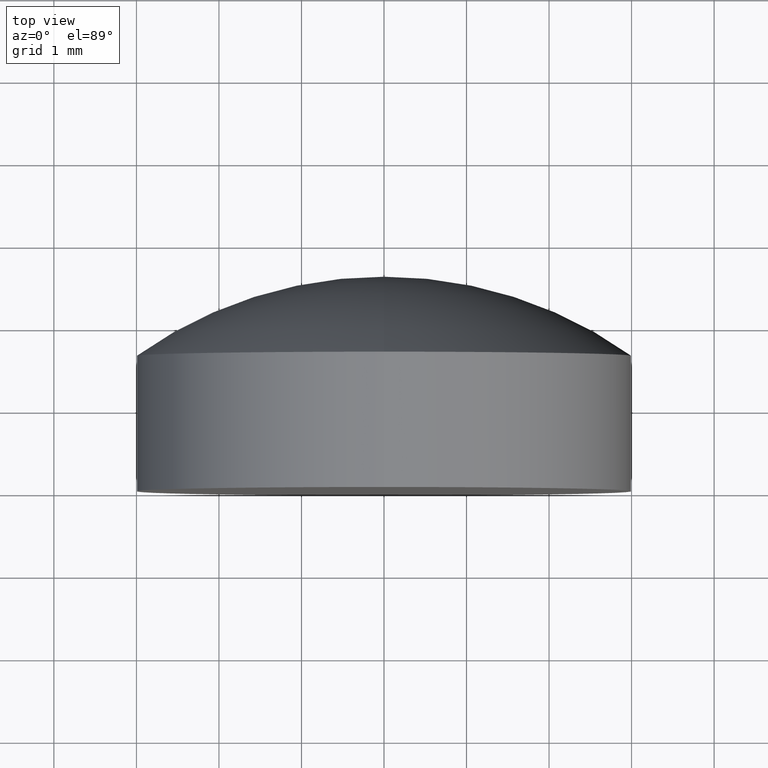
[diagram: clean part render]
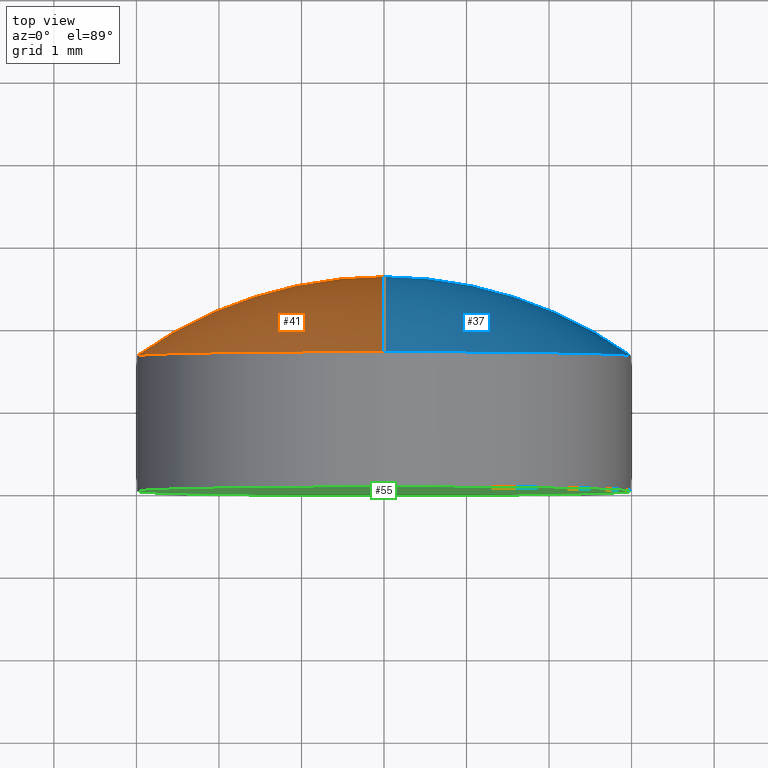
[diagram: same view with three faces highlighted in distinct colors, each labeled with its STEP entity id]
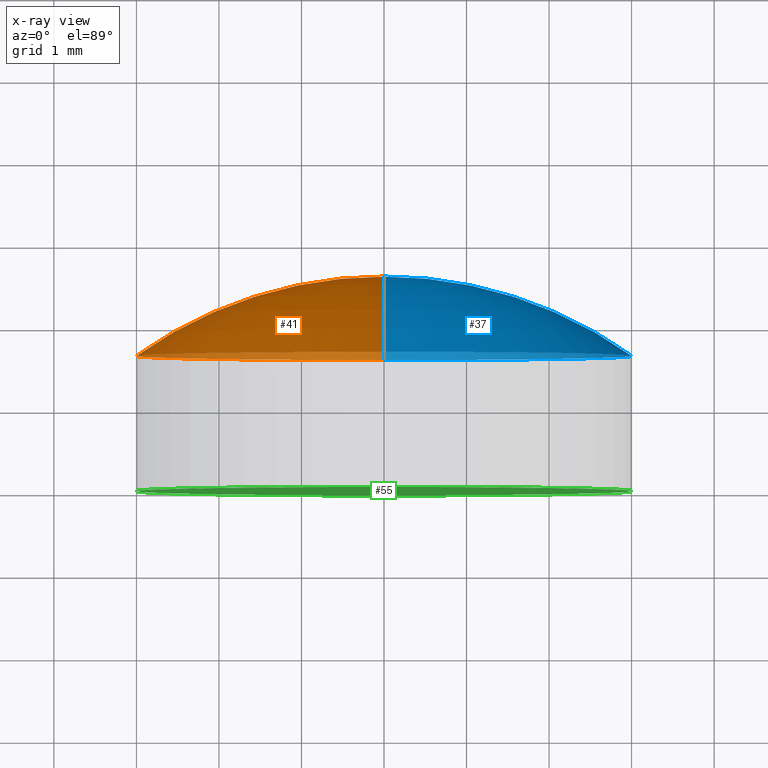
[diagram: x-ray of the same camera — body ghosted, the three highlighted faces saturated]
A machine part, top view with three faces highlighted in distinct colors.
The next image is the same camera in x-ray (body ghosted, the three faces saturated) — at least one of them is partly hidden behind the body in this view.
Their STEP definitions:

[orange] entity #41 — the highlighted toroidal blend (fillet) surface has major radius 0.0008 mm and minor (blend) radius 5.17 mm.
#7 = AXIS2_PLACEMENT_3D ( 'NONE', #60, #64, #29 ) ;
#9 = DIRECTION ( 'NONE',  ( -0.000000000000000000, 1.000000000000000000, -0.000000000000000000 ) ) ;
#28 = CARTESIAN_POINT ( 'NONE',  ( 0.000000000000000000, 1.639999999999999236, 3.000000000000000444 ) ) ;
#29 = DIRECTION ( 'NONE',  ( 1.224646799147353207E-16, 0.000000000000000000, -1.000000000000000000 ) ) ;
#36 = CIRCLE ( 'NONE', #88, 5.169999999999999929 ) ;
#39 = VERTEX_POINT ( 'NONE', #28 ) ;
#41 = ADVANCED_FACE ( 'NONE', ( #45 ), #75, .T. ) ;
#45 = FACE_OUTER_BOUND ( 'NONE', #128, .T. ) ;
#46 = DIRECTION ( 'NONE',  ( 0.000000000000000000, 0.000000000000000000, 1.000000000000000000 ) ) ;
#49 = CARTESIAN_POINT ( 'NONE',  ( 3.673940397442060361E-16, 1.639999999999999236, -3.000000000000000444 ) ) ;
#56 = ORIENTED_EDGE ( 'NONE', *, *, #140, .T. ) ;
#58 = CARTESIAN_POINT ( 'NONE',  ( 0.000000000000000000, -2.569999938107513593, 0.000000000000000000 ) ) ;
#60 = CARTESIAN_POINT ( 'NONE',  ( -9.796931844589988710E-20, -2.569999938107513593, 0.0007999801944047046226 ) ) ;
#64 = DIRECTION ( 'NONE',  ( 1.000000000000000000, 0.000000000000000000, 1.224646799147353207E-16 ) ) ;
#67 = CIRCLE ( 'NONE', #137, 3.000000000000000000 ) ;
#75 = TOROIDAL_SURFACE ( 'NONE', #176, -0.0007999801944047046226, 5.169999999999999929 ) ;
#88 = AXIS2_PLACEMENT_3D ( 'NONE', #149, #195, #189 ) ;
#101 = ORIENTED_EDGE ( 'NONE', *, *, #112, .F. ) ;
#112 = EDGE_CURVE ( 'NONE', #162, #114, #180, .T. ) ;
#114 = VERTEX_POINT ( 'NONE', #132 ) ;
#128 = EDGE_LOOP ( 'NONE', ( #101, #192, #56 ) ) ;
#132 = CARTESIAN_POINT ( 'NONE',  ( 0.000000000000000000, 2.600000000000000089, 0.000000000000000000 ) ) ;
#137 = AXIS2_PLACEMENT_3D ( 'NONE', #186, #173, #171 ) ;
#140 = EDGE_CURVE ( 'NONE', #39, #114, #36, .T. ) ;
#149 = CARTESIAN_POINT ( 'NONE',  ( 0.000000000000000000, -2.569999938107513593, -0.0007999801944047046226 ) ) ;
#162 = VERTEX_POINT ( 'NONE', #49 ) ;
#163 = EDGE_CURVE ( 'NONE', #162, #39, #67, .T. ) ;
#171 = DIRECTION ( 'NONE',  ( 0.000000000000000000, 0.000000000000000000, 1.000000000000000000 ) ) ;
#173 = DIRECTION ( 'NONE',  ( -0.000000000000000000, 1.000000000000000000, -0.000000000000000000 ) ) ;
#176 = AXIS2_PLACEMENT_3D ( 'NONE', #58, #9, #46 ) ;
#180 = CIRCLE ( 'NONE', #7, 5.169999999999999929 ) ;
#186 = CARTESIAN_POINT ( 'NONE',  ( 0.000000000000000000, 1.639999999999999458, 0.000000000000000000 ) ) ;
#189 = DIRECTION ( 'NONE',  ( 0.000000000000000000, 0.000000000000000000, 1.000000000000000000 ) ) ;
#192 = ORIENTED_EDGE ( 'NONE', *, *, #163, .T. ) ;
#195 = DIRECTION ( 'NONE',  ( -1.000000000000000000, 0.000000000000000000, 0.000000000000000000 ) ) ;

[blue] entity #37 — the highlighted toroidal blend (fillet) surface has major radius 0.0008 mm and minor (blend) radius 5.17 mm.
#7 = AXIS2_PLACEMENT_3D ( 'NONE', #60, #64, #29 ) ;
#8 = ORIENTED_EDGE ( 'NONE', *, *, #72, .T. ) ;
#23 = ORIENTED_EDGE ( 'NONE', *, *, #112, .T. ) ;
#25 = DIRECTION ( 'NONE',  ( 0.000000000000000000, 0.000000000000000000, 1.000000000000000000 ) ) ;
#28 = CARTESIAN_POINT ( 'NONE',  ( 0.000000000000000000, 1.639999999999999236, 3.000000000000000444 ) ) ;
#29 = DIRECTION ( 'NONE',  ( 1.224646799147353207E-16, 0.000000000000000000, -1.000000000000000000 ) ) ;
#36 = CIRCLE ( 'NONE', #88, 5.169999999999999929 ) ;
#37 = ADVANCED_FACE ( 'NONE', ( #166 ), #103, .T. ) ;
#39 = VERTEX_POINT ( 'NONE', #28 ) ;
#49 = CARTESIAN_POINT ( 'NONE',  ( 3.673940397442060361E-16, 1.639999999999999236, -3.000000000000000444 ) ) ;
#52 = AXIS2_PLACEMENT_3D ( 'NONE', #136, #165, #185 ) ;
#54 = AXIS2_PLACEMENT_3D ( 'NONE', #133, #61, #25 ) ;
#60 = CARTESIAN_POINT ( 'NONE',  ( -9.796931844589988710E-20, -2.569999938107513593, 0.0007999801944047046226 ) ) ;
#61 = DIRECTION ( 'NONE',  ( -0.000000000000000000, 1.000000000000000000, -0.000000000000000000 ) ) ;
#64 = DIRECTION ( 'NONE',  ( 1.000000000000000000, 0.000000000000000000, 1.224646799147353207E-16 ) ) ;
#71 = EDGE_LOOP ( 'NONE', ( #8, #23, #84 ) ) ;
#72 = EDGE_CURVE ( 'NONE', #39, #162, #113, .T. ) ;
#84 = ORIENTED_EDGE ( 'NONE', *, *, #140, .F. ) ;
#88 = AXIS2_PLACEMENT_3D ( 'NONE', #149, #195, #189 ) ;
#103 = TOROIDAL_SURFACE ( 'NONE', #52, -0.0007999801944047046226, 5.169999999999999929 ) ;
#112 = EDGE_CURVE ( 'NONE', #162, #114, #180, .T. ) ;
#113 = CIRCLE ( 'NONE', #54, 3.000000000000000000 ) ;
#114 = VERTEX_POINT ( 'NONE', #132 ) ;
#132 = CARTESIAN_POINT ( 'NONE',  ( 0.000000000000000000, 2.600000000000000089, 0.000000000000000000 ) ) ;
#133 = CARTESIAN_POINT ( 'NONE',  ( 0.000000000000000000, 1.639999999999999458, 0.000000000000000000 ) ) ;
#136 = CARTESIAN_POINT ( 'NONE',  ( 0.000000000000000000, -2.569999938107513593, 0.000000000000000000 ) ) ;
#140 = EDGE_CURVE ( 'NONE', #39, #114, #36, .T. ) ;
#149 = CARTESIAN_POINT ( 'NONE',  ( 0.000000000000000000, -2.569999938107513593, -0.0007999801944047046226 ) ) ;
#162 = VERTEX_POINT ( 'NONE', #49 ) ;
#165 = DIRECTION ( 'NONE',  ( -0.000000000000000000, 1.000000000000000000, -0.000000000000000000 ) ) ;
#166 = FACE_OUTER_BOUND ( 'NONE', #71, .T. ) ;
#180 = CIRCLE ( 'NONE', #7, 5.169999999999999929 ) ;
#185 = DIRECTION ( 'NONE',  ( 0.000000000000000000, 0.000000000000000000, 1.000000000000000000 ) ) ;
#189 = DIRECTION ( 'NONE',  ( 0.000000000000000000, 0.000000000000000000, 1.000000000000000000 ) ) ;
#195 = DIRECTION ( 'NONE',  ( -1.000000000000000000, 0.000000000000000000, 0.000000000000000000 ) ) ;

[green] entity #55 — the highlighted planar face has unit normal (0, -1, 0).
#12 = PLANE ( 'NONE',  #167 ) ;
#14 = DIRECTION ( 'NONE',  ( 0.000000000000000000, 0.000000000000000000, 1.000000000000000000 ) ) ;
#20 = ORIENTED_EDGE ( 'NONE', *, *, #120, .F. ) ;
#22 = VERTEX_POINT ( 'NONE', #118 ) ;
#24 = CIRCLE ( 'NONE', #44, 3.000000000000000000 ) ;
#42 = EDGE_LOOP ( 'NONE', ( #20, #145 ) ) ;
#43 = FACE_OUTER_BOUND ( 'NONE', #42, .T. ) ;
#44 = AXIS2_PLACEMENT_3D ( 'NONE', #105, #123, #168 ) ;
#47 = DIRECTION ( 'NONE',  ( -0.000000000000000000, 1.000000000000000000, -0.000000000000000000 ) ) ;
#55 = ADVANCED_FACE ( 'NONE', ( #43 ), #12, .T. ) ;
#73 = VERTEX_POINT ( 'NONE', #148 ) ;
#76 = DIRECTION ( 'NONE',  ( 0.000000000000000000, -1.000000000000000000, 0.000000000000000000 ) ) ;
#82 = AXIS2_PLACEMENT_3D ( 'NONE', #197, #47, #14 ) ;
#104 = DIRECTION ( 'NONE',  ( 0.000000000000000000, -0.000000000000000000, -1.000000000000000000 ) ) ;
#105 = CARTESIAN_POINT ( 'NONE',  ( 0.000000000000000000, -4.336808689942017736E-16, 0.000000000000000000 ) ) ;
#118 = CARTESIAN_POINT ( 'NONE',  ( 0.000000000000000000, -4.336808689942017736E-16, 3.000000000000000000 ) ) ;
#120 = EDGE_CURVE ( 'NONE', #22, #73, #24, .T. ) ;
#123 = DIRECTION ( 'NONE',  ( -0.000000000000000000, 1.000000000000000000, -0.000000000000000000 ) ) ;
#144 = CIRCLE ( 'NONE', #82, 3.000000000000000000 ) ;
#145 = ORIENTED_EDGE ( 'NONE', *, *, #188, .F. ) ;
#148 = CARTESIAN_POINT ( 'NONE',  ( 3.673940397442059868E-16, -4.336808689942017736E-16, -3.000000000000000000 ) ) ;
#167 = AXIS2_PLACEMENT_3D ( 'NONE', #196, #76, #104 ) ;
#168 = DIRECTION ( 'NONE',  ( 0.000000000000000000, 0.000000000000000000, 1.000000000000000000 ) ) ;
#188 = EDGE_CURVE ( 'NONE', #73, #22, #144, .T. ) ;
#196 = CARTESIAN_POINT ( 'NONE',  ( 0.000000000000000000, -1.836970198721029934E-16, 0.000000000000000000 ) ) ;
#197 = CARTESIAN_POINT ( 'NONE',  ( 0.000000000000000000, -4.336808689942017736E-16, 0.000000000000000000 ) ) ;